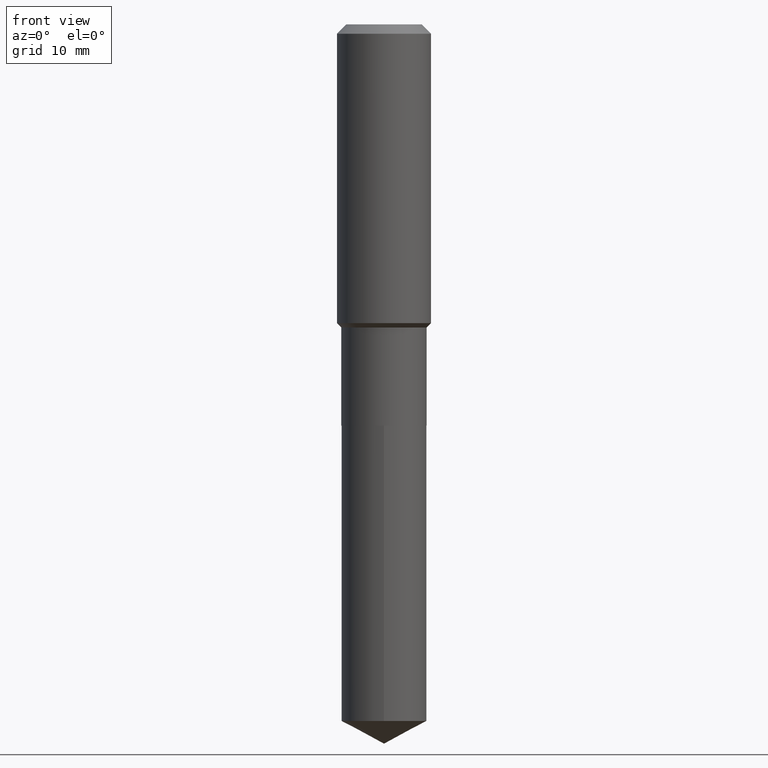
[diagram: clean part render]
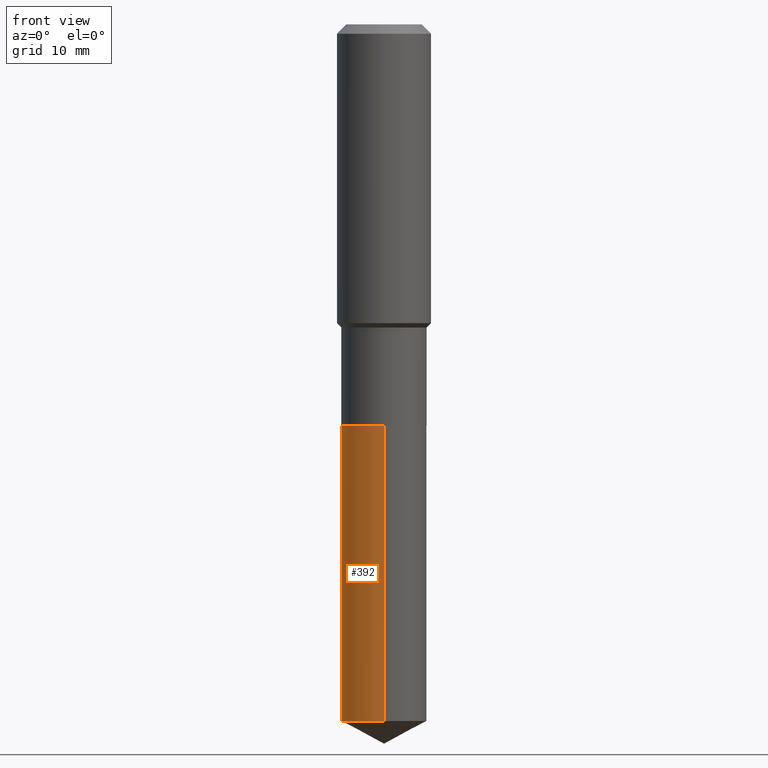
[diagram: same view with one face highlighted and labeled with its STEP entity id]
A machine part, front view. The second image highlights one B-rep face of the part: STEP entity #392.
In plain terms, the highlighted cylindrical surface (partial cylindrical patch) has radius 6.35 mm, axis along (-0, 0, 1).
Its self-contained STEP definition (entity closure, byte-faithful):
#5 = CYLINDRICAL_SURFACE ( 'NONE', #313, 0.2500000000000000000 ) ;
#15 = CARTESIAN_POINT ( 'NONE',  ( -1.745740669421508894E-15, -0.2500000000000082157, -2.350399999999999157 ) ) ;
#21 = LINE ( 'NONE', #15, #164 ) ;
#25 = EDGE_CURVE ( 'NONE', #351, #110, #21, .T. ) ;
#30 = CIRCLE ( 'NONE', #200, 0.2500000000000000000 ) ;
#34 = ORIENTED_EDGE ( 'NONE', *, *, #243, .F. ) ;
#45 = DIRECTION ( 'NONE',  ( -2.445566419007551929E-29, 3.491341551725669682E-15, 1.000000000000000000 ) ) ;
#54 = DIRECTION ( 'NONE',  ( -2.445566419007551929E-29, 3.491341551725669287E-15, 1.000000000000000000 ) ) ;
#77 = VECTOR ( 'NONE', #144, 39.37007874015748143 ) ;
#82 = DIRECTION ( 'NONE',  ( -2.445566419007551929E-29, 3.491341551725669682E-15, 1.000000000000000000 ) ) ;
#93 = CARTESIAN_POINT ( 'NONE',  ( -1.745740669421508894E-15, -0.2500000000000082157, -2.350399999999999157 ) ) ;
#110 = VERTEX_POINT ( 'NONE', #93 ) ;
#144 = DIRECTION ( 'NONE',  ( -2.445566419007551929E-29, 3.491341551725669287E-15, 1.000000000000000000 ) ) ;
#152 = EDGE_LOOP ( 'NONE', ( #34, #320, #329, #202 ) ) ;
#161 = CARTESIAN_POINT ( 'NONE',  ( -1.745740669421466492E-15, -0.2500000000000141553, -4.079672642084629430 ) ) ;
#164 = VECTOR ( 'NONE', #54, 39.37007874015748143 ) ;
#192 = CARTESIAN_POINT ( 'NONE',  ( 1.776356839400350256E-15, 0.2499999999999918121, -2.350400000000000933 ) ) ;
#200 = AXIS2_PLACEMENT_3D ( 'NONE', #377, #82, #267 ) ;
#202 = ORIENTED_EDGE ( 'NONE', *, *, #251, .F. ) ;
#205 = CARTESIAN_POINT ( 'NONE',  ( 5.747829882057545692E-29, -8.206377738816930564E-15, -2.350400000000000045 ) ) ;
#229 = FACE_OUTER_BOUND ( 'NONE', #152, .T. ) ;
#232 = DIRECTION ( 'NONE',  ( -6.982962677686265922E-15, -1.000000000000000000, 3.278217592397115862E-15 ) ) ;
#243 = EDGE_CURVE ( 'NONE', #461, #285, #296, .T. ) ;
#251 = EDGE_CURVE ( 'NONE', #285, #110, #303, .T. ) ;
#267 = DIRECTION ( 'NONE',  ( -6.982962677686265922E-15, -1.000000000000000000, 4.370956789862821150E-15 ) ) ;
#282 = CARTESIAN_POINT ( 'NONE',  ( 1.776356839400349467E-15, 0.2499999999999856781, -4.079672642084632095 ) ) ;
#285 = VERTEX_POINT ( 'NONE', #192 ) ;
#293 = CARTESIAN_POINT ( 'NONE',  ( 5.747829882057545692E-29, -8.206377738816930564E-15, -2.350400000000000045 ) ) ;
#296 = LINE ( 'NONE', #480, #77 ) ;
#303 = CIRCLE ( 'NONE', #487, 0.2500000000000000000 ) ;
#313 = AXIS2_PLACEMENT_3D ( 'NONE', #205, #45, #232 ) ;
#320 = ORIENTED_EDGE ( 'NONE', *, *, #364, .T. ) ;
#329 = ORIENTED_EDGE ( 'NONE', *, *, #25, .T. ) ;
#334 = DIRECTION ( 'NONE',  ( -2.445566419007551929E-29, 3.491341551725669682E-15, 1.000000000000000000 ) ) ;
#351 = VERTEX_POINT ( 'NONE', #161 ) ;
#364 = EDGE_CURVE ( 'NONE', #461, #351, #30, .T. ) ;
#377 = CARTESIAN_POINT ( 'NONE',  ( 9.976880984848183371E-29, -1.424385916838943519E-14, -4.079672642084631207 ) ) ;
#392 = ADVANCED_FACE ( 'NONE', ( #229 ), #5, .T. ) ;
#444 = DIRECTION ( 'NONE',  ( -6.982962677686265922E-15, -1.000000000000000000, 3.278217592397115862E-15 ) ) ;
#461 = VERTEX_POINT ( 'NONE', #282 ) ;
#480 = CARTESIAN_POINT ( 'NONE',  ( 1.776356839400307657E-15, 0.2499999999999918121, -2.350400000000000933 ) ) ;
#487 = AXIS2_PLACEMENT_3D ( 'NONE', #293, #334, #444 ) ;